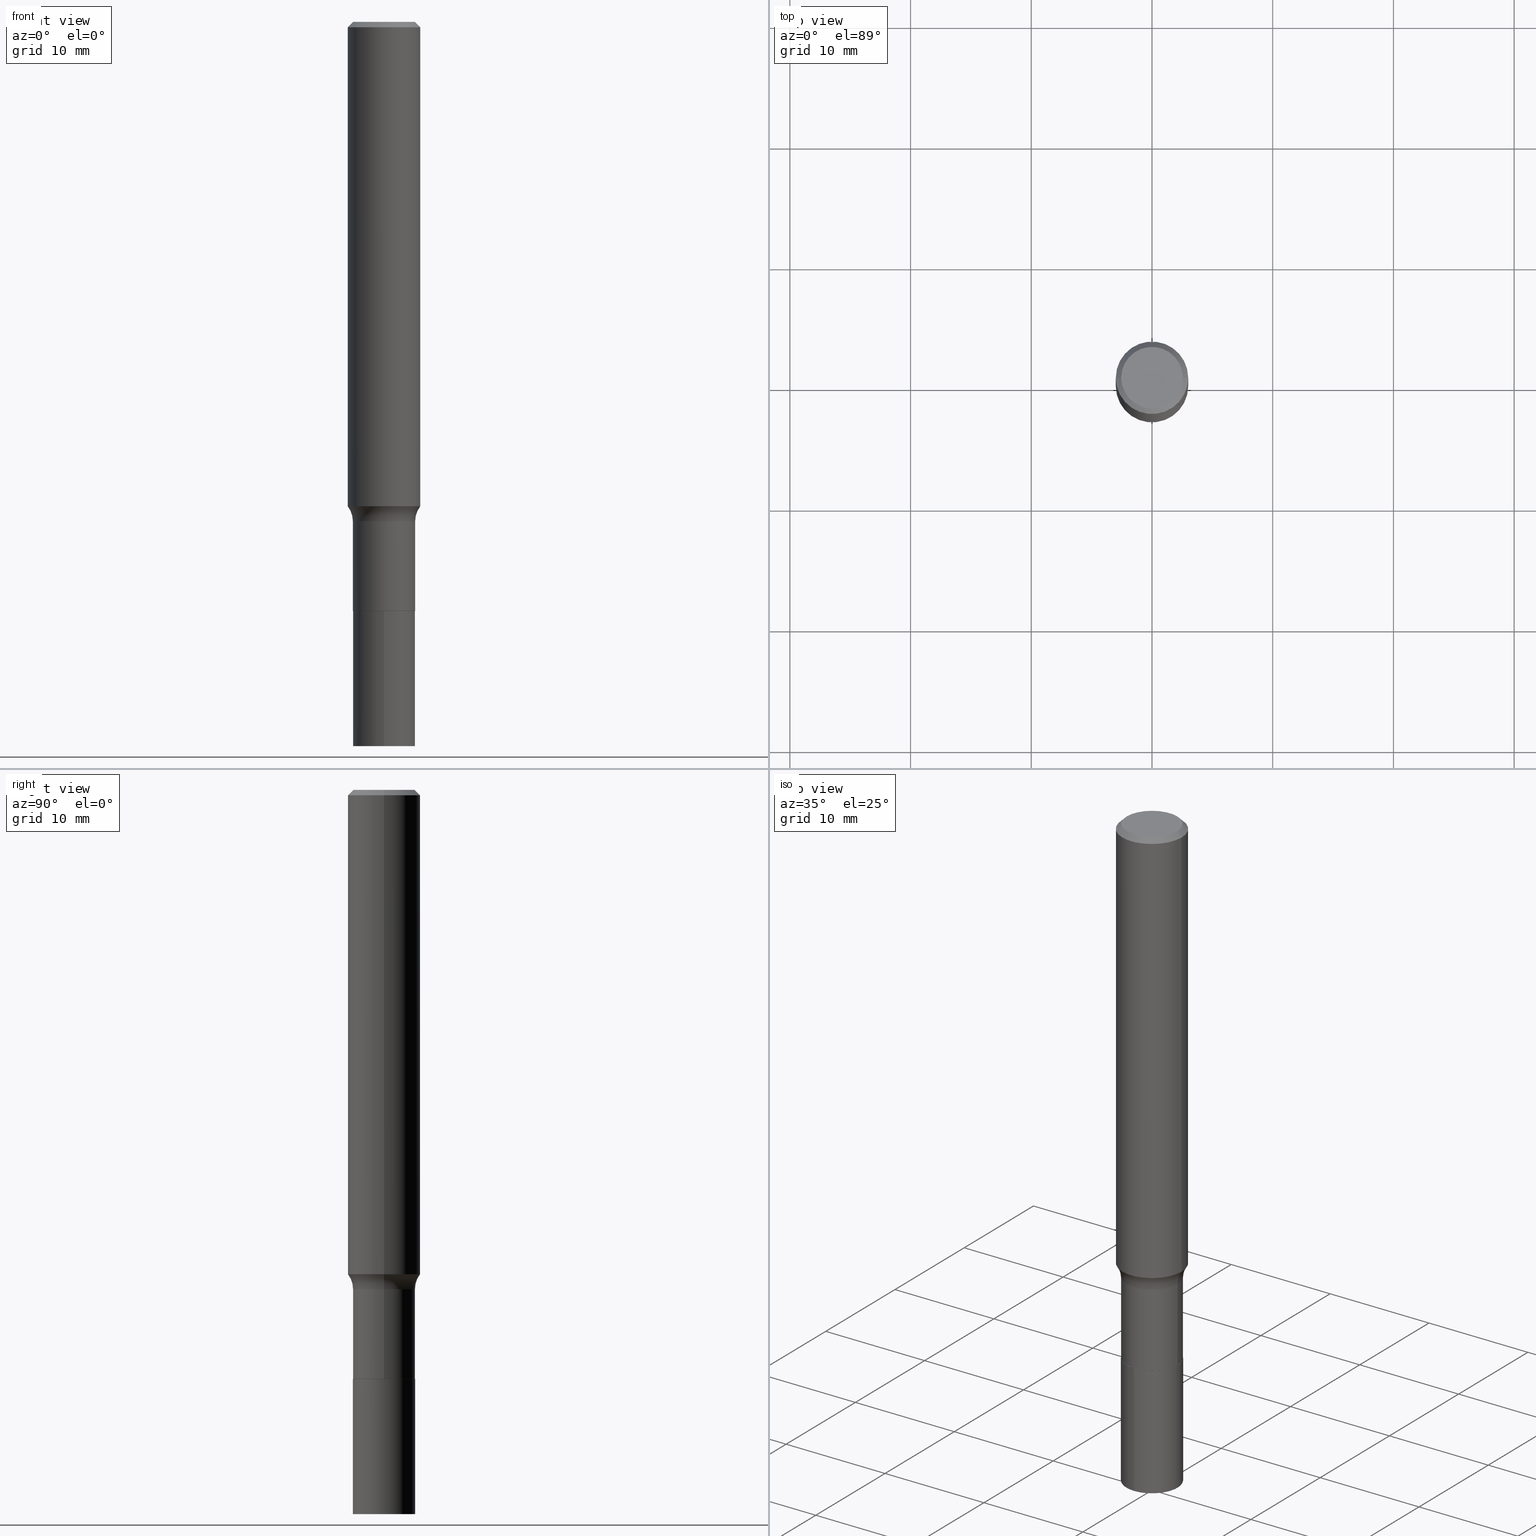
[diagram: canonical four-view strip — front | top / right | iso, engineering-drawing reading convention]
A machine part, canonical four-view strip (front | top / right | iso — engineering-drawing reading convention). The complete STEP part file that produces these views, byte-faithful:
ISO-10303-21;
HEADER;
FILE_DESCRIPTION (( 'STEP AP203' ),
    '1' );
FILE_NAME ('58506.STEP',
    '2024-04-19T14:40:28',
    ( '' ),
    ( '' ),
    'SwSTEP 2.0',
    'SolidWorks 2023',
    '' );
FILE_SCHEMA (( 'CONFIG_CONTROL_DESIGN' ));
ENDSEC;

DATA;
#1 = ORIENTED_EDGE ( 'NONE', *, *, #147, .T. ) ;
#2 = CIRCLE ( 'NONE', #223, 0.08000000000000002942 ) ;
#3 = LOCAL_TIME ( 10, 40, 28.00000000000000000, #306 ) ;
#4 = EDGE_CURVE ( 'NONE', #433, #432, #328, .T. ) ;
#5 = ORIENTED_EDGE ( 'NONE', *, *, #7, .F. ) ;
#6 = EDGE_LOOP ( 'NONE', ( #311, #320 ) ) ;
#7 = EDGE_CURVE ( 'NONE', #212, #78, #148, .T. ) ;
#8 = FACE_OUTER_BOUND ( 'NONE', #322, .T. ) ;
#9 = APPROVAL_DATE_TIME ( #84, #129 ) ;
#10 = AXIS2_PLACEMENT_3D ( 'NONE', #401, #80, #44 ) ;
#11 = CC_DESIGN_APPROVAL ( #129, ( #285 ) ) ;
#12 = DIRECTION ( 'NONE',  ( 1.000000000000000000, -6.982962677686269077E-15, 0.000000000000000000 ) ) ;
#13 = PERSON_AND_ORGANIZATION_ROLE ( 'creator' ) ;
#14 =( NAMED_UNIT ( * ) PLANE_ANGLE_UNIT ( ) SI_UNIT ( $, .RADIAN. ) );
#15 = FACE_OUTER_BOUND ( 'NONE', #29, .T. ) ;
#16 = DIRECTION ( 'NONE',  ( 1.000000000000000000, -6.982962677686264344E-15, 0.000000000000000000 ) ) ;
#17 = AXIS2_PLACEMENT_3D ( 'NONE', #259, #407, #234 ) ;
#18 = COORDINATED_UNIVERSAL_TIME_OFFSET ( 5, 0, .BEHIND. ) ;
#19 = CARTESIAN_POINT ( 'NONE',  ( 4.332147990156995868E-31, -6.185159191760670395E-17, -0.01771500000000010913 ) ) ;
#20 = ADVANCED_FACE ( 'NONE', ( #145 ), #340, .T. ) ;
#21 = EDGE_LOOP ( 'NONE', ( #345, #98, #244, #294 ) ) ;
#22 = DIRECTION ( 'NONE',  ( 1.000000000000000000, -6.982962677686266711E-15, 4.876176775795935793E-29 ) ) ;
#23 = EDGE_LOOP ( 'NONE', ( #348, #366, #247, #5 ) ) ;
#24 = DIRECTION ( 'NONE',  ( -2.445468806185136597E-29, 3.491481338843145583E-15, 1.000000000000000000 ) ) ;
#25 = AXIS2_PLACEMENT_3D ( 'NONE', #188, #82, #83 ) ;
#26 = AXIS2_PLACEMENT_3D ( 'NONE', #458, #135, #310 ) ;
#27 = ORIENTED_EDGE ( 'NONE', *, *, #248, .F. ) ;
#28 = CYLINDRICAL_SURFACE ( 'NONE', #198, 0.1015500000000000014 ) ;
#29 = EDGE_LOOP ( 'NONE', ( #353, #461 ) ) ;
#30 = DIRECTION ( 'NONE',  ( 1.000000000000000000, -6.982962677686266711E-15, 0.000000000000000000 ) ) ;
#31 = FACE_OUTER_BOUND ( 'NONE', #318, .T. ) ;
#32 = DIRECTION ( 'NONE',  ( -2.445468806185136877E-29, 3.491481338843145188E-15, 1.000000000000000000 ) ) ;
#33 = AXIS2_PLACEMENT_3D ( 'NONE', #376, #403, #440 ) ;
#34 = CIRCLE ( 'NONE', #58, 0.08000000000000002942 ) ;
#35 = LINE ( 'NONE', #321, #64 ) ;
#36 = VERTEX_POINT ( 'NONE', #181 ) ;
#37 = ADVANCED_FACE ( 'NONE', ( #108 ), #69, .T. ) ;
#38 = EDGE_LOOP ( 'NONE', ( #253, #355, #1, #288 ) ) ;
#39 = ADVANCED_FACE ( 'NONE', ( #330 ), #72, .T. ) ;
#40 = ORIENTED_EDGE ( 'NONE', *, *, #71, .F. ) ;
#41 = LOCAL_TIME ( 10, 40, 28.00000000000000000, #18 ) ;
#42 = ADVANCED_FACE ( 'NONE', ( #467 ), #146, .F. ) ;
#43 = ORIENTED_EDGE ( 'NONE', *, *, #437, .T. ) ;
#44 = DIRECTION ( 'NONE',  ( 1.000000000000000000, -6.982962677686269077E-15, 0.000000000000000000 ) ) ;
#45 = PERSON_AND_ORGANIZATION ( #468, #250 ) ;
#46 = CARTESIAN_POINT ( 'NONE',  ( 0.1180999999999999966, -8.720764054544245267E-16, -0.01771500000000010913 ) ) ;
#47 = PERSON_AND_ORGANIZATION ( #468, #250 ) ;
#48 = CC_DESIGN_PERSON_AND_ORGANIZATION_ASSIGNMENT ( #230, #93, ( #285 ) ) ;
#49 = LOCAL_TIME ( 10, 40, 28.00000000000000000, #116 ) ;
#50 = DIRECTION ( 'NONE',  ( 1.000000000000000000, -6.982962677686264344E-15, 0.000000000000000000 ) ) ;
#51 = PERSON_AND_ORGANIZATION ( #468, #250 ) ;
#52 = CARTESIAN_POINT ( 'NONE',  ( 4.332147990156995868E-31, -6.185159191760670395E-17, -0.01771500000000010913 ) ) ;
#53 =( NAMED_UNIT ( * ) SI_UNIT ( $, .STERADIAN. ) SOLID_ANGLE_UNIT ( ) );
#54 = DIRECTION ( 'NONE',  ( -2.445468806185136597E-29, 3.491481338843145583E-15, 1.000000000000000000 ) ) ;
#55 = PERSON_AND_ORGANIZATION ( #468, #250 ) ;
#56 = AXIS2_PLACEMENT_3D ( 'NONE', #404, #89, #192 ) ;
#57 = CARTESIAN_POINT ( 'NONE',  ( -7.091198599189828994E-16, -0.1015500000000082864, -2.362200000000000077 ) ) ;
#58 = AXIS2_PLACEMENT_3D ( 'NONE', #124, #267, #367 ) ;
#59 = ORIENTED_EDGE ( 'NONE', *, *, #309, .T. ) ;
#60 = CARTESIAN_POINT ( 'NONE',  ( -0.1015499999999999736, -5.474775783880549735E-15, -1.628700000000000259 ) ) ;
#61 = FACE_OUTER_BOUND ( 'NONE', #208, .T. ) ;
#62 = EDGE_CURVE ( 'NONE', #432, #433, #182, .T. ) ;
#63 = DIRECTION ( 'NONE',  ( -2.426229174433296852E-29, 3.519033586563613878E-15, 1.000000000000000000 ) ) ;
#64 = VECTOR ( 'NONE', #216, 39.37007874015748143 ) ;
#65 = VERTEX_POINT ( 'NONE', #336 ) ;
#66 = DIRECTION ( 'NONE',  ( -2.445468806185136877E-29, 3.491481338843145188E-15, 1.000000000000000000 ) ) ;
#67 = ORIENTED_EDGE ( 'NONE', *, *, #71, .T. ) ;
#68 = DIRECTION ( 'NONE',  ( -1.000000000000000000, 6.982962677686266711E-15, 0.000000000000000000 ) ) ;
#69 = CYLINDRICAL_SURFACE ( 'NONE', #88, 0.1015499999999999875 ) ;
#70 = CARTESIAN_POINT ( 'NONE',  ( -0.1003850000000000159, 7.319105043583386689E-16, -2.868857591683090262E-17 ) ) ;
#71 = EDGE_CURVE ( 'NONE', #65, #212, #462, .T. ) ;
#72 = CYLINDRICAL_SURFACE ( 'NONE', #351, 0.1015499999999999875 ) ;
#73 = TOROIDAL_SURFACE ( 'NONE', #217, 0.1815499999999999614, 0.08000000000000002942 ) ;
#74 = CC_DESIGN_APPROVAL ( #219, ( #295 ) ) ;
#75 = ORIENTED_EDGE ( 'NONE', *, *, #327, .F. ) ;
#76 = DIRECTION ( 'NONE',  ( -1.000000000000000000, 6.982962677686266711E-15, 0.000000000000000000 ) ) ;
#77 = EDGE_CURVE ( 'NONE', #433, #36, #122, .T. ) ;
#78 = VERTEX_POINT ( 'NONE', #160 ) ;
#79 = LOCAL_TIME ( 10, 40, 28.00000000000000000, #304 ) ;
#80 = DIRECTION ( 'NONE',  ( -2.445468806185136597E-29, 3.491481338843145583E-15, 1.000000000000000000 ) ) ;
#81 = DATE_AND_TIME ( #158, #49 ) ;
#82 = DIRECTION ( 'NONE',  ( -2.445468806185136597E-29, 3.491481338843145583E-15, 1.000000000000000000 ) ) ;
#83 = DIRECTION ( 'NONE',  ( 1.000000000000000000, -6.982962677686266711E-15, 0.000000000000000000 ) ) ;
#84 = DATE_AND_TIME ( #405, #79 ) ;
#85 = ADVANCED_BREP_SHAPE_REPRESENTATION ( '58506', ( #185, #342, #103 ), #447 ) ;
#86 = AXIS2_PLACEMENT_3D ( 'NONE', #338, #162, #50 ) ;
#87 = TOROIDAL_SURFACE ( 'NONE', #26, 0.1815499999999999614, 0.08000000000000002942 ) ;
#88 = AXIS2_PLACEMENT_3D ( 'NONE', #214, #113, #434 ) ;
#89 = DIRECTION ( 'NONE',  ( -2.426229174433296852E-29, 3.519033586563613878E-15, 1.000000000000000000 ) ) ;
#90 = PERSON_AND_ORGANIZATION_ROLE ( 'design_owner' ) ;
#91 = EDGE_CURVE ( 'NONE', #78, #324, #231, .T. ) ;
#92 = DIRECTION ( 'NONE',  ( -2.426229174433296852E-29, 3.519033586563613878E-15, 1.000000000000000000 ) ) ;
#93 = PERSON_AND_ORGANIZATION_ROLE ( 'creator' ) ;
#94 = DIRECTION ( 'NONE',  ( -2.445468806185136597E-29, 3.491481338843145583E-15, 1.000000000000000000 ) ) ;
#95 = CIRCLE ( 'NONE', #439, 0.1180999999999999966 ) ;
#96 = EDGE_CURVE ( 'NONE', #324, #78, #406, .T. ) ;
#97 = CARTESIAN_POINT ( 'NONE',  ( -0.1180999999999999966, 7.628363003171413738E-16, -0.01771500000000010913 ) ) ;
#98 = ORIENTED_EDGE ( 'NONE', *, *, #62, .F. ) ;
#99 = PRODUCT_DEFINITION_SHAPE ( 'NONE', 'NONE',  #295 ) ;
#100 = CARTESIAN_POINT ( 'NONE',  ( 7.215561481644285872E-16, 0.1015499999999932984, -1.921200000000000463 ) ) ;
#101 = ORIENTED_EDGE ( 'NONE', *, *, #263, .F. ) ;
#102 = FACE_OUTER_BOUND ( 'NONE', #6, .T. ) ;
#103 = AXIS2_PLACEMENT_3D ( 'NONE', #237, #443, #226 ) ;
#104 = ORIENTED_EDGE ( 'NONE', *, *, #459, .F. ) ;
#105 = LINE ( 'NONE', #284, #166 ) ;
#106 = EDGE_CURVE ( 'NONE', #255, #364, #260, .T. ) ;
#107 = CARTESIAN_POINT ( 'NONE',  ( 0.1010500000000000009, -7.413462326765649723E-15, -1.921200000000000241 ) ) ;
#108 = FACE_OUTER_BOUND ( 'NONE', #23, .T. ) ;
#109 = DIRECTION ( 'NONE',  ( 2.426229174433296572E-29, -3.519033586563613878E-15, -1.000000000000000000 ) ) ;
#110 = VECTOR ( 'NONE', #32, 39.37007874015748143 ) ;
#111 = CONICAL_SURFACE ( 'NONE', #373, 0.1010500000000000009, 0.7853981633975507526 ) ;
#112 = ORIENTED_EDGE ( 'NONE', *, *, #327, .T. ) ;
#113 = DIRECTION ( 'NONE',  ( -2.445468806185136597E-29, 3.491481338843145583E-15, 1.000000000000000000 ) ) ;
#114 = APPLICATION_CONTEXT ( 'configuration controlled 3d designs of mechanical parts and assemblies' ) ;
#115 = FACE_OUTER_BOUND ( 'NONE', #180, .T. ) ;
#116 = COORDINATED_UNIVERSAL_TIME_OFFSET ( 5, 0, .BEHIND. ) ;
#117 = AXIS2_PLACEMENT_3D ( 'NONE', #296, #397, #435 ) ;
#118 = AXIS2_PLACEMENT_3D ( 'NONE', #134, #421, #210 ) ;
#119 = DIRECTION ( 'NONE',  ( -2.445468806185136597E-29, 3.491481338843145583E-15, 1.000000000000000000 ) ) ;
#120 = CALENDAR_DATE ( 2024, 19, 4 ) ;
#121 = ADVANCED_FACE ( 'NONE', ( #8 ), #186, .T. ) ;
#122 = LINE ( 'NONE', #46, #314 ) ;
#123 = DATE_TIME_ROLE ( 'creation_date' ) ;
#124 = CARTESIAN_POINT ( 'NONE',  ( -0.1815499999999999614, -4.396585319801370318E-15, -1.628700000000000259 ) ) ;
#125 = PERSON_AND_ORGANIZATION_ROLE ( 'classification_officer' ) ;
#126 = AXIS2_PLACEMENT_3D ( 'NONE', #427, #392, #68 ) ;
#127 = CARTESIAN_POINT ( 'NONE',  ( 4.698234670442884563E-29, -6.707833948185452736E-15, -1.921200000000000241 ) ) ;
#128 = APPROVAL_STATUS ( 'not_yet_approved' ) ;
#129 = APPROVAL ( #128, 'UNSPECIFIED' ) ;
#130 = DIRECTION ( 'NONE',  ( -2.426229174433296852E-29, 3.519033586563613878E-15, 1.000000000000000000 ) ) ;
#131 = CARTESIAN_POINT ( 'NONE',  ( 1.339241356902062190E-29, -1.460225110402514776E-14, -2.362200000000000077 ) ) ;
#132 = CC_DESIGN_DATE_AND_TIME_ASSIGNMENT ( #81, #123, ( #295 ) ) ;
#133 = AXIS2_PLACEMENT_3D ( 'NONE', #450, #202, #277 ) ;
#134 = CARTESIAN_POINT ( 'NONE',  ( 0.000000000000000000, 0.000000000000000000, 0.000000000000000000 ) ) ;
#135 = DIRECTION ( 'NONE',  ( -2.445468806185136597E-29, 3.491481338843145583E-15, 1.000000000000000000 ) ) ;
#136 = ORIENTED_EDGE ( 'NONE', *, *, #309, .F. ) ;
#137 = LINE ( 'NONE', #100, #291 ) ;
#138 = EDGE_LOOP ( 'NONE', ( #390, #282, #455, #149 ) ) ;
#139 = CARTESIAN_POINT ( 'NONE',  ( 7.215561481644341092E-16, 0.1015499999999917580, -2.362200000000000966 ) ) ;
#140 = AXIS2_PLACEMENT_3D ( 'NONE', #52, #305, #301 ) ;
#141 = ORIENTED_EDGE ( 'NONE', *, *, #452, .F. ) ;
#142 = CC_DESIGN_APPROVAL ( #363, ( #276 ) ) ;
#143 = ADVANCED_FACE ( 'NONE', ( #15 ), #157, .F. ) ;
#144 = CARTESIAN_POINT ( 'NONE',  ( -7.091198599189934504E-16, -0.1015500000000067182, -1.921200000000000019 ) ) ;
#145 = FACE_OUTER_BOUND ( 'NONE', #396, .T. ) ;
#146 = PLANE ( 'NONE',  #206 ) ;
#147 = EDGE_CURVE ( 'NONE', #257, #78, #2, .T. ) ;
#148 = LINE ( 'NONE', #393, #110 ) ;
#149 = ORIENTED_EDGE ( 'NONE', *, *, #147, .F. ) ;
#150 = ORIENTED_EDGE ( 'NONE', *, *, #391, .T. ) ;
#151 = DIRECTION ( 'NONE',  ( 1.000000000000000000, -6.982962677686269077E-15, 0.000000000000000000 ) ) ;
#152 = DATE_TIME_ROLE ( 'classification_date' ) ;
#153 = AXIS2_PLACEMENT_3D ( 'NONE', #308, #54, #229 ) ;
#154 = ADVANCED_FACE ( 'NONE', ( #298 ), #73, .F. ) ;
#155 = DIRECTION ( 'NONE',  ( 1.000000000000000000, -6.982962677686266711E-15, 4.875668750515085695E-29 ) ) ;
#156 = APPROVAL_ROLE ( '' ) ;
#157 = PLANE ( 'NONE',  #233 ) ;
#158 = CALENDAR_DATE ( 2024, 19, 4 ) ;
#159 = EDGE_CURVE ( 'NONE', #417, #324, #34, .T. ) ;
#160 = CARTESIAN_POINT ( 'NONE',  ( 0.1015499999999999736, -6.395695516492872910E-15, -1.628700000000000259 ) ) ;
#161 = AXIS2_PLACEMENT_3D ( 'NONE', #249, #170, #271 ) ;
#162 = DIRECTION ( 'NONE',  ( -2.445468806185136597E-29, 3.491481338843145583E-15, 1.000000000000000000 ) ) ;
#163 = CARTESIAN_POINT ( 'NONE',  ( 3.863780282840086408E-29, -5.516454236016518236E-15, -1.579975288610397932 ) ) ;
#164 = ORIENTED_EDGE ( 'NONE', *, *, #173, .F. ) ;
#165 = DIRECTION ( 'NONE',  ( -0.7071067811865455743, 2.468850131082236945E-15, -0.7071067811865493491 ) ) ;
#166 = VECTOR ( 'NONE', #287, 39.37007874015748143 ) ;
#167 = CARTESIAN_POINT ( 'NONE',  ( 4.698234670442884563E-29, -6.707833948185452736E-15, -1.921200000000000241 ) ) ;
#168 = APPROVAL_DATE_TIME ( #211, #363 ) ;
#169 = ORIENTED_EDGE ( 'NONE', *, *, #384, .F. ) ;
#170 = DIRECTION ( 'NONE',  ( -2.445468806185136597E-29, 3.491481338843145583E-15, 1.000000000000000000 ) ) ;
#171 = ORIENTED_EDGE ( 'NONE', *, *, #316, .F. ) ;
#172 = CARTESIAN_POINT ( 'NONE',  ( 3.863780282840086408E-29, -5.516454236016518236E-15, -1.579975288610397932 ) ) ;
#173 = EDGE_CURVE ( 'NONE', #364, #255, #283, .T. ) ;
#174 = CARTESIAN_POINT ( 'NONE',  ( 4.698234670442884563E-29, -6.707833948185452736E-15, -1.921200000000000241 ) ) ;
#175 = CIRCLE ( 'NONE', #161, 0.1010500000000000009 ) ;
#176 = ORIENTED_EDGE ( 'NONE', *, *, #224, .F. ) ;
#177 = APPROVAL_PERSON_ORGANIZATION ( #265, #219, #196 ) ;
#178 = CARTESIAN_POINT ( 'NONE',  ( 4.332147990156995868E-31, -6.185159191760670395E-17, -0.01771500000000010913 ) ) ;
#179 = EDGE_CURVE ( 'NONE', #256, #465, #341, .T. ) ;
#180 = EDGE_LOOP ( 'NONE', ( #221, #293, #176, #184 ) ) ;
#181 = CARTESIAN_POINT ( 'NONE',  ( 0.1180999999999999966, -8.865394841523547570E-16, -0.01771500000000010913 ) ) ;
#182 = CIRCLE ( 'NONE', #190, 0.1003850000000000159 ) ;
#183 = AXIS2_PLACEMENT_3D ( 'NONE', #312, #419, #394 ) ;
#184 = ORIENTED_EDGE ( 'NONE', *, *, #437, .F. ) ;
#185 = MANIFOLD_SOLID_BREP ( 'Body-Move/Copy2[1]', #399 ) ;
#186 = CYLINDRICAL_SURFACE ( 'NONE', #56, 0.1015500000000000014 ) ;
#187 = ADVANCED_FACE ( 'NONE', ( #337 ), #261, .F. ) ;
#188 = CARTESIAN_POINT ( 'NONE',  ( 3.982935044633732468E-29, -5.686575656573832917E-15, -1.628700000000000259 ) ) ;
#189 = CALENDAR_DATE ( 2024, 19, 4 ) ;
#190 = AXIS2_PLACEMENT_3D ( 'NONE', #194, #446, #155 ) ;
#191 = CIRCLE ( 'NONE', #133, 0.1015500000000000291 ) ;
#192 = DIRECTION ( 'NONE',  ( -6.982962677686266711E-15, -1.000000000000000000, 2.690150658458161520E-15 ) ) ;
#193 = DATE_AND_TIME ( #189, #41 ) ;
#194 = CARTESIAN_POINT ( 'NONE',  ( 7.015701749847187307E-46, -1.001656274515824970E-31, -2.868857591682589212E-17 ) ) ;
#195 = DIRECTION ( 'NONE',  ( -1.000000000000000000, 6.982962677686265922E-15, -4.876176775795935793E-29 ) ) ;
#196 = APPROVAL_ROLE ( '' ) ;
#197 = AXIS2_PLACEMENT_3D ( 'NONE', #178, #430, #76 ) ;
#198 = AXIS2_PLACEMENT_3D ( 'NONE', #167, #63, #245 ) ;
#199 = DIRECTION ( 'NONE',  ( 1.000000000000000000, -6.982962677686268288E-15, 0.000000000000000000 ) ) ;
#200 = ORIENTED_EDGE ( 'NONE', *, *, #292, .T. ) ;
#201 = UNCERTAINTY_MEASURE_WITH_UNIT (LENGTH_MEASURE( 1.000000000000000082E-05 ), #262, 'distance_accuracy_value', 'NONE');
#202 = DIRECTION ( 'NONE',  ( -2.426229174433296852E-29, 3.519033586563613878E-15, 1.000000000000000000 ) ) ;
#203 = EDGE_CURVE ( 'NONE', #36, #280, #307, .T. ) ;
#204 = PLANE ( 'NONE',  #463 ) ;
#205 = ORIENTED_EDGE ( 'NONE', *, *, #335, .F. ) ;
#206 = AXIS2_PLACEMENT_3D ( 'NONE', #290, #109, #369 ) ;
#207 = CARTESIAN_POINT ( 'NONE',  ( -0.1010500000000000009, -5.987181286525760488E-15, -1.921200000000000241 ) ) ;
#208 = EDGE_LOOP ( 'NONE', ( #136, #286, #112, #171 ) ) ;
#209 = CC_DESIGN_PERSON_AND_ORGANIZATION_ASSIGNMENT ( #410, #13, ( #295 ) ) ;
#210 = DIRECTION ( 'NONE',  ( 1.000000000000000000, -6.982962677686266711E-15, 4.876176775795935793E-29 ) ) ;
#211 = DATE_AND_TIME ( #120, #359 ) ;
#212 = VERTEX_POINT ( 'NONE', #270 ) ;
#213 = DIRECTION ( 'NONE',  ( -2.445468806185136597E-29, 3.491481338843145583E-15, 1.000000000000000000 ) ) ;
#214 = CARTESIAN_POINT ( 'NONE',  ( 0.000000000000000000, 0.000000000000000000, 0.000000000000000000 ) ) ;
#215 = AXIS2_PLACEMENT_3D ( 'NONE', #332, #92, #227 ) ;
#216 = DIRECTION ( 'NONE',  ( 0.7071067811866199593, -2.468850131083015945E-15, 0.7071067811864750752 ) ) ;
#217 = AXIS2_PLACEMENT_3D ( 'NONE', #444, #442, #225 ) ;
#218 = ORIENTED_EDGE ( 'NONE', *, *, #7, .T. ) ;
#219 = APPROVAL ( #368, 'UNSPECIFIED' ) ;
#220 = ORIENTED_EDGE ( 'NONE', *, *, #452, .T. ) ;
#221 = ORIENTED_EDGE ( 'NONE', *, *, #263, .T. ) ;
#222 = ORIENTED_EDGE ( 'NONE', *, *, #77, .T. ) ;
#223 = AXIS2_PLACEMENT_3D ( 'NONE', #372, #333, #151 ) ;
#224 = EDGE_CURVE ( 'NONE', #212, #65, #232, .T. ) ;
#225 = DIRECTION ( 'NONE',  ( 1.000000000000000000, -6.982962677686269077E-15, 4.883557194083114022E-29 ) ) ;
#226 = DIRECTION ( 'NONE',  ( 1.000000000000000000, 0.000000000000000000, 0.000000000000000000 ) ) ;
#227 = DIRECTION ( 'NONE',  ( -6.982962677686266711E-15, -1.000000000000000000, 2.690150658458161520E-15 ) ) ;
#228 = ADVANCED_FACE ( 'NONE', ( #115 ), #334, .T. ) ;
#229 = DIRECTION ( 'NONE',  ( 1.000000000000000000, -6.982962677686266711E-15, 0.000000000000000000 ) ) ;
#230 = PERSON_AND_ORGANIZATION ( #468, #250 ) ;
#231 = CIRCLE ( 'NONE', #25, 0.1015499999999999736 ) ;
#232 = CIRCLE ( 'NONE', #400, 0.1015500000000000014 ) ;
#233 = AXIS2_PLACEMENT_3D ( 'NONE', #236, #303, #195 ) ;
#234 = DIRECTION ( 'NONE',  ( 1.000000000000000000, -6.982962677686265922E-15, 4.876176775795935793E-29 ) ) ;
#235 = COORDINATED_UNIVERSAL_TIME_OFFSET ( 5, 0, .BEHIND. ) ;
#236 = CARTESIAN_POINT ( 'NONE',  ( 3.507850874923593654E-46, -5.008281372579124849E-32, -1.434428795841294606E-17 ) ) ;
#237 = CARTESIAN_POINT ( 'NONE',  ( 0.000000000000000000, 0.000000000000000000, 0.000000000000000000 ) ) ;
#238 = CARTESIAN_POINT ( 'NONE',  ( -7.091198599189934504E-16, -0.1015500000000067182, -1.921200000000000019 ) ) ;
#239 = VECTOR ( 'NONE', #423, 39.37007874015748143 ) ;
#240 = ADVANCED_FACE ( 'NONE', ( #414 ), #28, .T. ) ;
#241 = DIRECTION ( 'NONE',  ( -6.982962677686265922E-15, -1.000000000000000000, 3.519033586563613878E-15 ) ) ;
#242 = ORIENTED_EDGE ( 'NONE', *, *, #203, .F. ) ;
#243 = FACE_OUTER_BOUND ( 'NONE', #395, .T. ) ;
#244 = ORIENTED_EDGE ( 'NONE', *, *, #384, .T. ) ;
#245 = DIRECTION ( 'NONE',  ( -6.982962677686266711E-15, -1.000000000000000000, 2.690150658458161520E-15 ) ) ;
#246 = SHAPE_DEFINITION_REPRESENTATION ( #99, #85 ) ;
#247 = ORIENTED_EDGE ( 'NONE', *, *, #91, .F. ) ;
#248 = EDGE_CURVE ( 'NONE', #256, #65, #449, .T. ) ;
#249 = CARTESIAN_POINT ( 'NONE',  ( 4.698234670442884563E-29, -6.707833948185452736E-15, -1.921200000000000241 ) ) ;
#250 = ORGANIZATION ( 'UNSPECIFIED', 'UNSPECIFIED', '' ) ;
#251 = CARTESIAN_POINT ( 'NONE',  ( -0.1181000000000002187, -4.677303265083837672E-15, -1.579975288610397932 ) ) ;
#252 = ORIENTED_EDGE ( 'NONE', *, *, #106, .F. ) ;
#253 = ORIENTED_EDGE ( 'NONE', *, *, #159, .F. ) ;
#254 = VECTOR ( 'NONE', #165, 39.37007874015748854 ) ;
#255 = VERTEX_POINT ( 'NONE', #317 ) ;
#256 = VERTEX_POINT ( 'NONE', #207 ) ;
#257 = VERTEX_POINT ( 'NONE', #456 ) ;
#258 = CC_DESIGN_PERSON_AND_ORGANIZATION_ASSIGNMENT ( #51, #125, ( #276 ) ) ;
#259 = CARTESIAN_POINT ( 'NONE',  ( 4.698234670442884563E-29, -6.707833948185452736E-15, -1.921200000000000241 ) ) ;
#260 = CIRCLE ( 'NONE', #215, 0.1015500000000000014 ) ;
#261 = PLANE ( 'NONE',  #17 ) ;
#262 =( CONVERSION_BASED_UNIT ( 'INCH', #302 ) LENGTH_UNIT ( ) NAMED_UNIT ( #438 ) );
#263 = EDGE_CURVE ( 'NONE', #465, #256, #175, .T. ) ;
#264 = DIRECTION ( 'NONE',  ( 0.7071067811865455743, -7.319954787623248157E-15, -0.7071067811865493491 ) ) ;
#265 = PERSON_AND_ORGANIZATION ( #468, #250 ) ;
#266 = DESIGN_CONTEXT ( 'detailed design', #388, 'design' ) ;
#267 = DIRECTION ( 'NONE',  ( 7.105427357601001859E-15, 1.000000000000000000, -3.491481338843145583E-15 ) ) ;
#268 = APPROVAL_STATUS ( 'not_yet_approved' ) ;
#269 = CC_DESIGN_SECURITY_CLASSIFICATION ( #276, ( #285 ) ) ;
#270 = CARTESIAN_POINT ( 'NONE',  ( 0.1015500000000000014, -7.415208067435072015E-15, -1.920700000000000296 ) ) ;
#271 = DIRECTION ( 'NONE',  ( 1.000000000000000000, -6.982962677686269077E-15, 0.000000000000000000 ) ) ;
#272 = ADVANCED_FACE ( 'NONE', ( #102 ), #204, .F. ) ;
#273 = LINE ( 'NONE', #97, #254 ) ;
#274 = ORIENTED_EDGE ( 'NONE', *, *, #106, .T. ) ;
#275 = CIRCLE ( 'NONE', #408, 0.1181000000000002048 ) ;
#276 = SECURITY_CLASSIFICATION ( '', '', #374 ) ;
#277 = DIRECTION ( 'NONE',  ( -6.982962677686265922E-15, -1.000000000000000000, 2.690150658458161125E-15 ) ) ;
#278 = ORIENTED_EDGE ( 'NONE', *, *, #335, .T. ) ;
#279 = CARTESIAN_POINT ( 'NONE',  ( 0.000000000000000000, 0.000000000000000000, 0.000000000000000000 ) ) ;
#280 = VERTEX_POINT ( 'NONE', #453 ) ;
#281 = DIRECTION ( 'NONE',  ( 1.000000000000000000, -6.982962677686268288E-15, 0.000000000000000000 ) ) ;
#282 = ORIENTED_EDGE ( 'NONE', *, *, #159, .T. ) ;
#283 = CIRCLE ( 'NONE', #33, 0.1015500000000000014 ) ;
#284 = CARTESIAN_POINT ( 'NONE',  ( -0.1015499999999999875, 7.215561481643816499E-16, -4.995178584153856401E-30 ) ) ;
#285 = PRODUCT_DEFINITION_FORMATION_WITH_SPECIFIED_SOURCE ( 'ANY', '', #375, .NOT_KNOWN. ) ;
#286 = ORIENTED_EDGE ( 'NONE', *, *, #356, .T. ) ;
#287 = DIRECTION ( 'NONE',  ( -2.445468806185136877E-29, 3.491481338843145188E-15, 1.000000000000000000 ) ) ;
#288 = ORIENTED_EDGE ( 'NONE', *, *, #91, .T. ) ;
#289 = ADVANCED_FACE ( 'NONE', ( #61 ), #347, .T. ) ;
#290 = CARTESIAN_POINT ( 'NONE',  ( 4.698234670442884563E-29, -6.707833948185452736E-15, -1.921200000000000241 ) ) ;
#291 = VECTOR ( 'NONE', #130, 39.37007874015748143 ) ;
#292 = EDGE_CURVE ( 'NONE', #257, #417, #275, .T. ) ;
#293 = ORIENTED_EDGE ( 'NONE', *, *, #248, .T. ) ;
#294 = ORIENTED_EDGE ( 'NONE', *, *, #316, .T. ) ;
#295 = PRODUCT_DEFINITION ( 'UNKNOWN', '', #285, #266 ) ;
#296 = CARTESIAN_POINT ( 'NONE',  ( 7.015701749847187307E-46, -1.001656274515824970E-31, -2.868857591682589212E-17 ) ) ;
#297 = MECHANICAL_CONTEXT ( 'NONE', #114, 'mechanical' ) ;
#298 = FACE_OUTER_BOUND ( 'NONE', #38, .T. ) ;
#299 = PERSON_AND_ORGANIZATION ( #468, #250 ) ;
#300 = CC_DESIGN_PERSON_AND_ORGANIZATION_ASSIGNMENT ( #55, #90, ( #375 ) ) ;
#301 = DIRECTION ( 'NONE',  ( 1.000000000000000000, -6.982962677686266711E-15, 0.000000000000000000 ) ) ;
#302 = LENGTH_MEASURE_WITH_UNIT ( LENGTH_MEASURE( 0.02539999999999999897 ), #436 );
#303 = DIRECTION ( 'NONE',  ( 2.438088387897960049E-29, -3.491481338843145188E-15, -1.000000000000000000 ) ) ;
#304 = COORDINATED_UNIVERSAL_TIME_OFFSET ( 5, 0, .BEHIND. ) ;
#305 = DIRECTION ( 'NONE',  ( -2.445468806185136597E-29, 3.491481338843145583E-15, 1.000000000000000000 ) ) ;
#306 = COORDINATED_UNIVERSAL_TIME_OFFSET ( 5, 0, .BEHIND. ) ;
#307 = CIRCLE ( 'NONE', #140, 0.1180999999999999966 ) ;
#308 = CARTESIAN_POINT ( 'NONE',  ( 3.982935044633732468E-29, -5.686575656573832917E-15, -1.628700000000000259 ) ) ;
#309 = EDGE_CURVE ( 'NONE', #417, #280, #352, .T. ) ;
#310 = DIRECTION ( 'NONE',  ( 1.000000000000000000, -6.982962677686269077E-15, 4.883557194083114022E-29 ) ) ;
#311 = ORIENTED_EDGE ( 'NONE', *, *, #391, .F. ) ;
#312 = CARTESIAN_POINT ( 'NONE',  ( 5.768201736367969540E-29, -8.259727759860008173E-15, -2.362200000000000522 ) ) ;
#313 = ORIENTED_EDGE ( 'NONE', *, *, #173, .T. ) ;
#314 = VECTOR ( 'NONE', #264, 39.37007874015748854 ) ;
#315 = VECTOR ( 'NONE', #429, 39.37007874015748143 ) ;
#316 = EDGE_CURVE ( 'NONE', #280, #36, #95, .T. ) ;
#317 = CARTESIAN_POINT ( 'NONE',  ( 7.215561481644394340E-16, 0.1015499999999932984, -1.921200000000000463 ) ) ;
#318 = EDGE_LOOP ( 'NONE', ( #27, #422, #43, #40 ) ) ;
#319 = CARTESIAN_POINT ( 'NONE',  ( -0.1181000000000001077, 8.391509709326790846E-16, -5.809262341591049389E-30 ) ) ;
#320 = ORIENTED_EDGE ( 'NONE', *, *, #370, .F. ) ;
#321 = CARTESIAN_POINT ( 'NONE',  ( 0.1010500000000000009, -7.413462326765649723E-15, -1.921200000000000241 ) ) ;
#322 = EDGE_LOOP ( 'NONE', ( #150, #278, #164, #141 ) ) ;
#323 = CARTESIAN_POINT ( 'NONE',  ( 0.1003850000000000159, -7.803837484803599345E-16, -2.868857591682071522E-17 ) ) ;
#324 = VERTEX_POINT ( 'NONE', #60 ) ;
#325 = DIRECTION ( 'NONE',  ( -2.445468806185136597E-29, 3.491481338843145583E-15, 1.000000000000000000 ) ) ;
#326 = EDGE_LOOP ( 'NONE', ( #104, #67, #218, #420 ) ) ;
#327 = EDGE_CURVE ( 'NONE', #257, #36, #383, .T. ) ;
#328 = CIRCLE ( 'NONE', #117, 0.1003850000000000159 ) ;
#329 = CONICAL_SURFACE ( 'NONE', #126, 0.1180999999999999966, 0.7853981633974456145 ) ;
#330 = FACE_OUTER_BOUND ( 'NONE', #326, .T. ) ;
#331 = EDGE_LOOP ( 'NONE', ( #313, #274 ) ) ;
#332 = CARTESIAN_POINT ( 'NONE',  ( 4.698234670442884563E-29, -6.707833948185452736E-15, -1.921200000000000241 ) ) ;
#333 = DIRECTION ( 'NONE',  ( -6.982962677686266711E-15, -1.000000000000000000, 3.491481338843145583E-15 ) ) ;
#334 = CONICAL_SURFACE ( 'NONE', #10, 0.1010500000000000009, 0.7853981633975507526 ) ;
#335 = EDGE_CURVE ( 'NONE', #451, #255, #137, .T. ) ;
#336 = CARTESIAN_POINT ( 'NONE',  ( -0.1015500000000000014, -5.474775783880549735E-15, -1.920700000000000296 ) ) ;
#337 = FACE_OUTER_BOUND ( 'NONE', #457, .T. ) ;
#338 = CARTESIAN_POINT ( 'NONE',  ( 4.697011936039792883E-29, -6.706088207516031233E-15, -1.920700000000000296 ) ) ;
#339 = PERSON_AND_ORGANIZATION_ROLE ( 'design_supplier' ) ;
#340 = CONICAL_SURFACE ( 'NONE', #197, 0.1180999999999999966, 0.7853981633974456145 ) ;
#341 = CIRCLE ( 'NONE', #426, 0.1010500000000000009 ) ;
#342 = MANIFOLD_SOLID_BREP ( 'Body-Move/Copy2[2]', #415 ) ;
#343 = DIRECTION ( 'NONE',  ( -2.426229174433296572E-29, 3.519033586563613878E-15, 1.000000000000000000 ) ) ;
#344 = DIRECTION ( 'NONE',  ( -2.445468806185136597E-29, 3.491481338843145583E-15, 1.000000000000000000 ) ) ;
#345 = ORIENTED_EDGE ( 'NONE', *, *, #77, .F. ) ;
#346 = ADVANCED_FACE ( 'NONE', ( #385 ), #87, .F. ) ;
#347 = CYLINDRICAL_SURFACE ( 'NONE', #118, 0.1181000000000001077 ) ;
#348 = ORIENTED_EDGE ( 'NONE', *, *, #224, .T. ) ;
#349 = CIRCLE ( 'NONE', #183, 0.1015500000000000291 ) ;
#350 = APPROVAL_PERSON_ORGANIZATION ( #45, #129, #156 ) ;
#351 = AXIS2_PLACEMENT_3D ( 'NONE', #357, #325, #398 ) ;
#352 = LINE ( 'NONE', #319, #382 ) ;
#353 = ORIENTED_EDGE ( 'NONE', *, *, #62, .T. ) ;
#354 = DIRECTION ( 'NONE',  ( -2.445468806185136597E-29, 3.491481338843145583E-15, 1.000000000000000000 ) ) ;
#355 = ORIENTED_EDGE ( 'NONE', *, *, #292, .F. ) ;
#356 = EDGE_CURVE ( 'NONE', #417, #257, #358, .T. ) ;
#357 = CARTESIAN_POINT ( 'NONE',  ( 0.000000000000000000, 0.000000000000000000, 0.000000000000000000 ) ) ;
#358 = CIRCLE ( 'NONE', #416, 0.1181000000000002048 ) ;
#359 = LOCAL_TIME ( 10, 40, 28.00000000000000000, #235 ) ;
#360 = FACE_OUTER_BOUND ( 'NONE', #21, .T. ) ;
#361 = ORIENTED_EDGE ( 'NONE', *, *, #203, .T. ) ;
#362 = EDGE_LOOP ( 'NONE', ( #205, #428, #220, #252 ) ) ;
#363 = APPROVAL ( #268, 'UNSPECIFIED' ) ;
#364 = VERTEX_POINT ( 'NONE', #238 ) ;
#365 = AXIS2_PLACEMENT_3D ( 'NONE', #279, #344, #22 ) ;
#366 = ORIENTED_EDGE ( 'NONE', *, *, #459, .T. ) ;
#367 = DIRECTION ( 'NONE',  ( -1.000000000000000000, 7.105427357601001859E-15, 0.000000000000000000 ) ) ;
#368 = APPROVAL_STATUS ( 'not_yet_approved' ) ;
#369 = DIRECTION ( 'NONE',  ( 6.982962677686265922E-15, 1.000000000000000000, -3.519033586563613878E-15 ) ) ;
#370 = EDGE_CURVE ( 'NONE', #451, #381, #191, .T. ) ;
#371 = DATE_AND_TIME ( #412, #3 ) ;
#372 = CARTESIAN_POINT ( 'NONE',  ( 0.1815499999999999614, -6.954332530707773774E-15, -1.628700000000000259 ) ) ;
#373 = AXIS2_PLACEMENT_3D ( 'NONE', #174, #213, #460 ) ;
#374 = SECURITY_CLASSIFICATION_LEVEL ( 'unclassified' ) ;
#375 = PRODUCT ( '58506', '58506', '', ( #297 ) ) ;
#376 = CARTESIAN_POINT ( 'NONE',  ( 4.698234670442884563E-29, -6.707833948185452736E-15, -1.921200000000000241 ) ) ;
#377 = ADVANCED_FACE ( 'NONE', ( #243 ), #380, .T. ) ;
#378 = DIRECTION ( 'NONE',  ( -2.445468806185136597E-29, 3.491481338843145583E-15, 1.000000000000000000 ) ) ;
#379 = APPLICATION_PROTOCOL_DEFINITION ( 'international standard', 'config_control_design', 1994, #388 ) ;
#380 = CYLINDRICAL_SURFACE ( 'NONE', #365, 0.1181000000000001077 ) ;
#381 = VERTEX_POINT ( 'NONE', #57 ) ;
#382 = VECTOR ( 'NONE', #66, 39.37007874015748143 ) ;
#383 = LINE ( 'NONE', #413, #239 ) ;
#384 = EDGE_CURVE ( 'NONE', #432, #280, #273, .T. ) ;
#385 = FACE_OUTER_BOUND ( 'NONE', #138, .T. ) ;
#386 = CARTESIAN_POINT ( 'NONE',  ( -0.1010500000000000009, -5.989830513699871689E-15, -1.921200000000000241 ) ) ;
#387 = ORIENTED_EDGE ( 'NONE', *, *, #179, .F. ) ;
#388 = APPLICATION_CONTEXT ( 'configuration controlled 3d designs of mechanical parts and assemblies' ) ;
#389 = DIRECTION ( 'NONE',  ( -0.7071067811866199593, 7.493145998870616062E-15, 0.7071067811864750752 ) ) ;
#390 = ORIENTED_EDGE ( 'NONE', *, *, #356, .F. ) ;
#391 = EDGE_CURVE ( 'NONE', #381, #451, #349, .T. ) ;
#392 = DIRECTION ( 'NONE',  ( 2.445468806185136597E-29, -3.491481338843145583E-15, -1.000000000000000000 ) ) ;
#393 = CARTESIAN_POINT ( 'NONE',  ( 0.1015499999999999875, -7.091198599190402890E-16, 4.951757515820772372E-30 ) ) ;
#394 = DIRECTION ( 'NONE',  ( -6.982962677686265922E-15, -1.000000000000000000, 2.690150658458161125E-15 ) ) ;
#395 = EDGE_LOOP ( 'NONE', ( #200, #59, #242, #75 ) ) ;
#396 = EDGE_LOOP ( 'NONE', ( #424, #222, #361, #169 ) ) ;
#397 = DIRECTION ( 'NONE',  ( -2.445468806185136597E-29, 3.491481338843145583E-15, 1.000000000000000000 ) ) ;
#398 = DIRECTION ( 'NONE',  ( 1.000000000000000000, -6.982962677686266711E-15, 4.876176775795935793E-29 ) ) ;
#399 = CLOSED_SHELL ( 'NONE', ( #121, #272, #240, #42 ) ) ;
#400 = AXIS2_PLACEMENT_3D ( 'NONE', #411, #378, #16 ) ;
#401 = CARTESIAN_POINT ( 'NONE',  ( 4.698234670442884563E-29, -6.707833948185452736E-15, -1.921200000000000241 ) ) ;
#402 = PRODUCT_RELATED_PRODUCT_CATEGORY ( 'detail', '', ( #375 ) ) ;
#403 = DIRECTION ( 'NONE',  ( -2.426229174433296852E-29, 3.519033586563613878E-15, 1.000000000000000000 ) ) ;
#404 = CARTESIAN_POINT ( 'NONE',  ( 4.698234670442884563E-29, -6.707833948185452736E-15, -1.921200000000000241 ) ) ;
#405 = CALENDAR_DATE ( 2024, 19, 4 ) ;
#406 = CIRCLE ( 'NONE', #153, 0.1015499999999999736 ) ;
#407 = DIRECTION ( 'NONE',  ( -2.438088387897960049E-29, 3.491481338843145188E-15, 1.000000000000000000 ) ) ;
#408 = AXIS2_PLACEMENT_3D ( 'NONE', #163, #24, #199 ) ;
#409 = APPROVAL_PERSON_ORGANIZATION ( #299, #363, #441 ) ;
#410 = PERSON_AND_ORGANIZATION ( #468, #250 ) ;
#411 = CARTESIAN_POINT ( 'NONE',  ( 4.697011936039792883E-29, -6.706088207516031233E-15, -1.920700000000000296 ) ) ;
#412 = CALENDAR_DATE ( 2024, 19, 4 ) ;
#413 = CARTESIAN_POINT ( 'NONE',  ( 0.1181000000000001077, -8.246878922347488542E-16, 5.758764772215005345E-30 ) ) ;
#414 = FACE_OUTER_BOUND ( 'NONE', #362, .T. ) ;
#415 = CLOSED_SHELL ( 'NONE', ( #228, #20, #377, #346, #37, #39, #154, #289, #466, #143, #187, #418 ) ) ;
#416 = AXIS2_PLACEMENT_3D ( 'NONE', #172, #94, #281 ) ;
#417 = VERTEX_POINT ( 'NONE', #251 ) ;
#418 = ADVANCED_FACE ( 'NONE', ( #31 ), #111, .T. ) ;
#419 = DIRECTION ( 'NONE',  ( -2.426229174433296852E-29, 3.519033586563613878E-15, 1.000000000000000000 ) ) ;
#420 = ORIENTED_EDGE ( 'NONE', *, *, #96, .F. ) ;
#421 = DIRECTION ( 'NONE',  ( -2.445468806185136597E-29, 3.491481338843145583E-15, 1.000000000000000000 ) ) ;
#422 = ORIENTED_EDGE ( 'NONE', *, *, #179, .T. ) ;
#423 = DIRECTION ( 'NONE',  ( -2.445468806185136877E-29, 3.491481338843145188E-15, 1.000000000000000000 ) ) ;
#424 = ORIENTED_EDGE ( 'NONE', *, *, #4, .F. ) ;
#425 = CC_DESIGN_DATE_AND_TIME_ASSIGNMENT ( #193, #152, ( #276 ) ) ;
#426 = AXIS2_PLACEMENT_3D ( 'NONE', #127, #119, #12 ) ;
#427 = CARTESIAN_POINT ( 'NONE',  ( 4.332147990156995868E-31, -6.185159191760670395E-17, -0.01771500000000010913 ) ) ;
#428 = ORIENTED_EDGE ( 'NONE', *, *, #370, .T. ) ;
#429 = DIRECTION ( 'NONE',  ( -2.426229174433296852E-29, 3.519033586563613878E-15, 1.000000000000000000 ) ) ;
#430 = DIRECTION ( 'NONE',  ( 2.445468806185136597E-29, -3.491481338843145583E-15, -1.000000000000000000 ) ) ;
#431 = CC_DESIGN_PERSON_AND_ORGANIZATION_ASSIGNMENT ( #47, #339, ( #285 ) ) ;
#432 = VERTEX_POINT ( 'NONE', #70 ) ;
#433 = VERTEX_POINT ( 'NONE', #323 ) ;
#434 = DIRECTION ( 'NONE',  ( 1.000000000000000000, -6.982962677686266711E-15, 4.876176775795935793E-29 ) ) ;
#435 = DIRECTION ( 'NONE',  ( 1.000000000000000000, -6.982962677686266711E-15, 4.875668750515085695E-29 ) ) ;
#436 =( LENGTH_UNIT ( ) NAMED_UNIT ( * ) SI_UNIT ( $, .METRE. ) );
#437 = EDGE_CURVE ( 'NONE', #465, #212, #35, .T. ) ;
#438 = DIMENSIONAL_EXPONENTS ( 1.000000000000000000, 0.000000000000000000, 0.000000000000000000, 0.000000000000000000, 0.000000000000000000, 0.000000000000000000, 0.000000000000000000 ) ;
#439 = AXIS2_PLACEMENT_3D ( 'NONE', #19, #354, #30 ) ;
#440 = DIRECTION ( 'NONE',  ( -6.982962677686266711E-15, -1.000000000000000000, 2.690150658458161520E-15 ) ) ;
#441 = APPROVAL_ROLE ( '' ) ;
#442 = DIRECTION ( 'NONE',  ( -2.445468806185136597E-29, 3.491481338843145583E-15, 1.000000000000000000 ) ) ;
#443 = DIRECTION ( 'NONE',  ( 0.000000000000000000, 0.000000000000000000, 1.000000000000000000 ) ) ;
#444 = CARTESIAN_POINT ( 'NONE',  ( 3.982935044633732468E-29, -5.686575656573832917E-15, -1.628700000000000259 ) ) ;
#445 = APPLICATION_PROTOCOL_DEFINITION ( 'international standard', 'config_control_design', 1994, #114 ) ;
#446 = DIRECTION ( 'NONE',  ( -2.445468806185136597E-29, 3.491481338843145583E-15, 1.000000000000000000 ) ) ;
#447 =( GEOMETRIC_REPRESENTATION_CONTEXT ( 3 ) GLOBAL_UNCERTAINTY_ASSIGNED_CONTEXT ( ( #201 ) ) GLOBAL_UNIT_ASSIGNED_CONTEXT ( ( #262, #14, #53 ) ) REPRESENTATION_CONTEXT ( 'NONE', 'WORKASPACE' ) );
#448 = APPROVAL_DATE_TIME ( #371, #219 ) ;
#449 = LINE ( 'NONE', #386, #454 ) ;
#450 = CARTESIAN_POINT ( 'NONE',  ( 5.768201736367969540E-29, -8.259727759860008173E-15, -2.362200000000000522 ) ) ;
#451 = VERTEX_POINT ( 'NONE', #139 ) ;
#452 = EDGE_CURVE ( 'NONE', #381, #364, #464, .T. ) ;
#453 = CARTESIAN_POINT ( 'NONE',  ( -0.1180999999999999966, -1.950001943034382048E-15, -0.01771500000000010913 ) ) ;
#454 = VECTOR ( 'NONE', #389, 39.37007874015748143 ) ;
#455 = ORIENTED_EDGE ( 'NONE', *, *, #96, .T. ) ;
#456 = CARTESIAN_POINT ( 'NONE',  ( 0.1181000000000002187, -6.341142128251266498E-15, -1.579975288610397932 ) ) ;
#457 = EDGE_LOOP ( 'NONE', ( #101, #387 ) ) ;
#458 = CARTESIAN_POINT ( 'NONE',  ( 3.982935044633732468E-29, -5.686575656573832917E-15, -1.628700000000000259 ) ) ;
#459 = EDGE_CURVE ( 'NONE', #65, #324, #105, .T. ) ;
#460 = DIRECTION ( 'NONE',  ( 1.000000000000000000, -6.982962677686269077E-15, 0.000000000000000000 ) ) ;
#461 = ORIENTED_EDGE ( 'NONE', *, *, #4, .T. ) ;
#462 = CIRCLE ( 'NONE', #86, 0.1015500000000000014 ) ;
#463 = AXIS2_PLACEMENT_3D ( 'NONE', #131, #343, #241 ) ;
#464 = LINE ( 'NONE', #144, #315 ) ;
#465 = VERTEX_POINT ( 'NONE', #107 ) ;
#466 = ADVANCED_FACE ( 'NONE', ( #360 ), #329, .T. ) ;
#467 = FACE_OUTER_BOUND ( 'NONE', #331, .T. ) ;
#468 = PERSON ( 'UNSPECIFIED', 'UNSPECIFIED', 'UNSPECIFIED', ('UNSPECIFIED'), ('UNSPECIFIED'), ('UNSPECIFIED') ) ;
ENDSEC;
END-ISO-10303-21;
